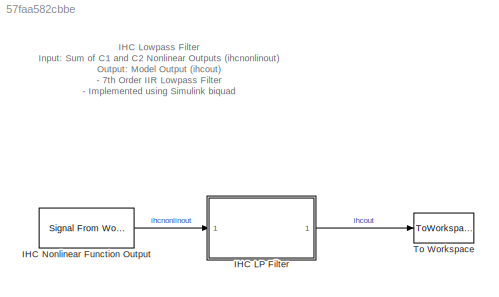
MODEL slx_57faa582cbbe
KIND model
CONFIG AbsTol = auto
CONFIG EnableMultiTasking = off
CONFIG FixedStep = auto
CONFIG InitFcn = IHC_Lowpass_Test_Parameters
CONFIG MaxStep = auto
CONFIG MinStep = auto
CONFIG RelTol = 1e-3
CONFIG SampleTimeConstraint = Unconstrained
CONFIG Solver = VariableStepAuto
CONFIG SolverName = VariableStepAuto
CONFIG StartTime = 0.0
CONFIG StopFcn = Verify_IHC_Lowpass_Filter
CONFIG StopTime = testtime
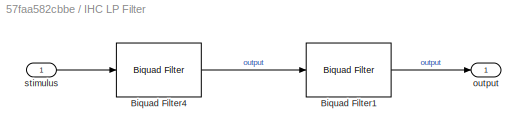
BLOCK [SubSystem] IHC LP Filter
  Ports = [1, 1]
  RequestExecContextInheritance = off
  ShowPortLabels = none
BLOCK [Reference] IHC LP Filter/Biquad Filter1  REF=dsparch4/Biquad Filter
  Ports = [1, 1]
  SourceBlock = dsparch4/Biquad Filter
  SourceProductBaseCode = DS
  SourceProductName = DSP System Toolbox
  SourceType = Biquad Filter
  UserDataPersistent = on
BLOCK [Reference] IHC LP Filter/Biquad Filter4  REF=dsparch4/Biquad Filter
  Ports = [1, 1]
  SourceBlock = dsparch4/Biquad Filter
  SourceProductBaseCode = DS
  SourceProductName = DSP System Toolbox
  SourceType = Biquad Filter
  UserDataPersistent = on
BLOCK [Outport] IHC LP Filter/output
  IconDisplay = Port number
BLOCK [Inport] IHC LP Filter/stimulus
  IconDisplay = Port number
BLOCK [Reference] IHC Nonlinear Function Output  REF=dspsrcs4/Signal From
Workspace
  Ports = [0, 1]
  SourceBlock = dspsrcs4/Signal From\nWorkspace
  SourceProductBaseCode = DS
  SourceProductName = DSP System Toolbox
  SourceType = Signal From Workspace
BLOCK [ToWorkspace] To Workspace
  MaxDataPoints = inf
  Ports = [1]
  SampleTime = -1
  Save2DSignal = 2-D array (concatenate along first dimension)
  VariableName = ihcout
ANNOTATION (root): IHC Lowpass Filter Input : Sum of C1 and C2 Nonlinear Outputs (ihcnonlinout) Output : Model Output (ihcout) - 7th Order IIR Lowpass Filter - Implemented using Simulink biquad
LINE IHC LP Filter/Biquad Filter1:1 -> IHC LP Filter/output:1
LINE IHC LP Filter/Biquad Filter4:1 -> IHC LP Filter/Biquad Filter1:1
LINE IHC LP Filter/stimulus:1 -> IHC LP Filter/Biquad Filter4:1
LINE IHC LP Filter:1 -> To Workspace:1
LINE IHC Nonlinear Function Output:1 -> IHC LP Filter:1
